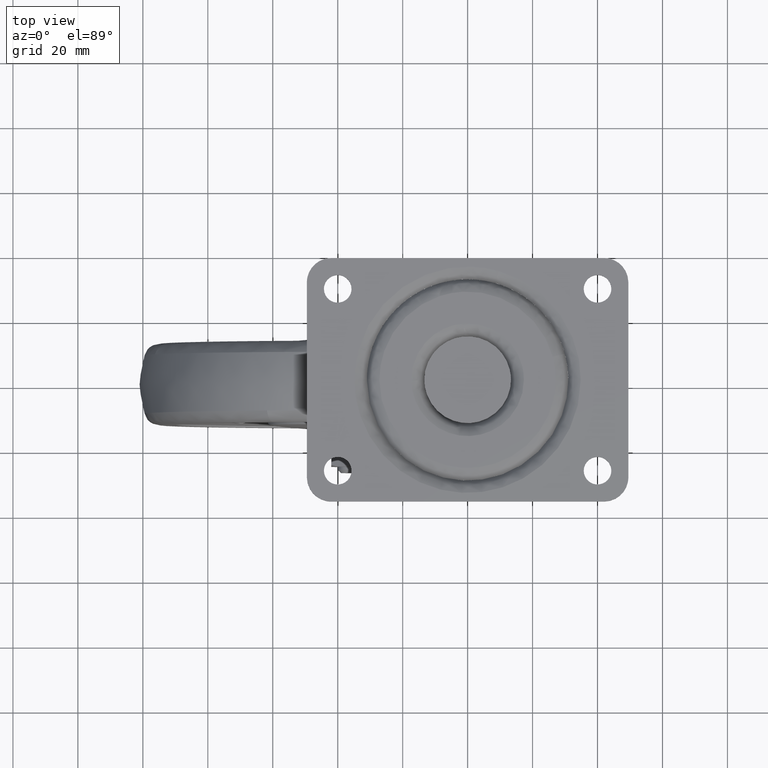
[diagram: clean part render]
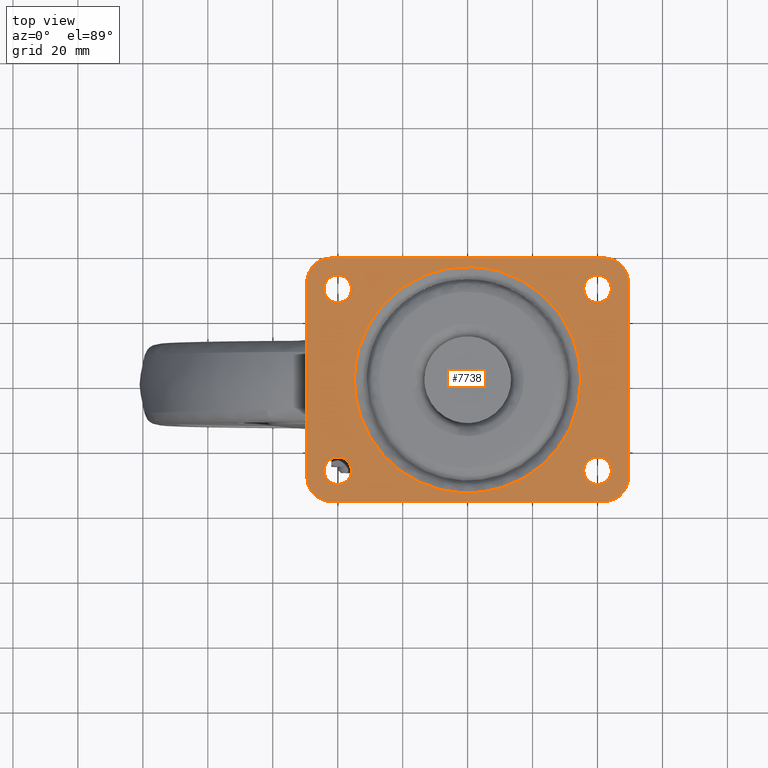
[diagram: same view with one face highlighted and labeled with its STEP entity id]
A machine part, top view. The second image highlights one B-rep face of the part: STEP entity #7738.
In plain terms, the highlighted face is a freeform B-spline surface patch.
Its self-contained STEP definition (entity closure, byte-faithful):
#5829=CARTESIAN_POINT('',(-40.501645497471713,23.779709512975870,1.490700E-016));
#5830=VERTEX_POINT('',#5829);
#5831=CARTESIAN_POINT('',(-35.750000000000007,28.0,0.0));
#5832=VERTEX_POINT('',#5831);
#5833=CARTESIAN_POINT('',(-40.501645497471706,23.779709512975874,1.490700E-016));
#5834=CARTESIAN_POINT('',(-40.251702508703026,23.749999999999996,0.0));
#5835=CARTESIAN_POINT('',(-40.0,23.750000000000000,0.0));
#5836=CARTESIAN_POINT('',(-35.750000000000007,23.750000000000011,0.0));
#5837=CARTESIAN_POINT('',(-35.750000000000007,28.0,0.0));
#5845=(BOUNDED_CURVE()B_SPLINE_CURVE(2,(#5833,#5834,#5835,#5836,#5837),.UNSPECIFIED.,.F.,.U.)B_SPLINE_CURVE_WITH_KNOTS((3,2,3),(0.229562473501188,0.250000000000000,0.500000000000000),.UNSPECIFIED.)CURVE()GEOMETRIC_REPRESENTATION_ITEM()RATIONAL_B_SPLINE_CURVE((0.956026754159552,0.976055948316711,1.0,0.707106781186548,1.0))REPRESENTATION_ITEM(''));
#5846=EDGE_CURVE('',#5830,#5832,#5845,.T.);
#5848=CARTESIAN_POINT('',(-39.740543706434572,32.242072893259767,1.457168E-016));
#5849=VERTEX_POINT('',#5848);
#5850=CARTESIAN_POINT('',(-35.750000000000007,28.0,0.0));
#5851=CARTESIAN_POINT('',(-35.750000000000000,31.998000783325136,0.0));
#5852=CARTESIAN_POINT('',(-39.740543706434572,32.242072893259767,1.457168E-016));
#5860=(BOUNDED_CURVE()B_SPLINE_CURVE(2,(#5850,#5851,#5852),.UNSPECIFIED.,.F.,.U.)B_SPLINE_CURVE_WITH_KNOTS((3,3),(0.500000000000000,0.739332962197853),.UNSPECIFIED.)CURVE()GEOMETRIC_REPRESENTATION_ITEM()RATIONAL_B_SPLINE_CURVE((1.0,0.719603993334849,0.976072041578655))REPRESENTATION_ITEM(''));
#5861=EDGE_CURVE('',#5832,#5849,#5860,.T.);
#5928=CARTESIAN_POINT('',(-44.250000000000000,28.0,0.0));
#5929=VERTEX_POINT('',#5928);
#5930=CARTESIAN_POINT('',(-44.250000000000000,28.0,0.0));
#5931=CARTESIAN_POINT('',(-44.250000000000007,24.225258265031830,0.0));
#5932=CARTESIAN_POINT('',(-40.501645497471706,23.779709512975867,1.490700E-016));
#5940=(BOUNDED_CURVE()B_SPLINE_CURVE(2,(#5930,#5931,#5932),.UNSPECIFIED.,.F.,.U.)B_SPLINE_CURVE_WITH_KNOTS((3,3),(0.0,0.229562473501189),.UNSPECIFIED.)CURVE()GEOMETRIC_REPRESENTATION_ITEM()RATIONAL_B_SPLINE_CURVE((1.0,0.731050832869836,0.956026754159552))REPRESENTATION_ITEM(''));
#5941=EDGE_CURVE('',#5929,#5830,#5940,.T.);
#5975=CARTESIAN_POINT('',(-39.740543706434579,32.242072893259767,1.457168E-016));
#5976=CARTESIAN_POINT('',(-39.870150755437180,32.250000000000000,0.0));
#5977=CARTESIAN_POINT('',(-40.0,32.250000000000000,0.0));
#5978=CARTESIAN_POINT('',(-44.250000000000000,32.250000000000000,0.0));
#5979=CARTESIAN_POINT('',(-44.250000000000000,28.0,0.0));
#5987=(BOUNDED_CURVE()B_SPLINE_CURVE(2,(#5975,#5976,#5977,#5978,#5979),.UNSPECIFIED.,.F.,.U.)B_SPLINE_CURVE_WITH_KNOTS((3,2,3),(0.739332962197853,0.750000000000000,1.0),.UNSPECIFIED.)CURVE()GEOMETRIC_REPRESENTATION_ITEM()RATIONAL_B_SPLINE_CURVE((0.976072041578654,0.987502787851698,1.0,0.707106781186548,1.0))REPRESENTATION_ITEM(''));
#5988=EDGE_CURVE('',#5849,#5929,#5987,.T.);
#6231=CARTESIAN_POINT('',(39.498354502528287,23.779709512975870,1.490700E-016));
#6232=VERTEX_POINT('',#6231);
#6233=CARTESIAN_POINT('',(44.250000000000000,28.0,0.0));
#6234=VERTEX_POINT('',#6233);
#6235=CARTESIAN_POINT('',(39.498354502528287,23.779709512975877,1.490700E-016));
#6236=CARTESIAN_POINT('',(39.748297491296981,23.749999999999996,0.0));
#6237=CARTESIAN_POINT('',(40.0,23.750000000000000,0.0));
#6238=CARTESIAN_POINT('',(44.250000000000000,23.750000000000011,0.0));
#6239=CARTESIAN_POINT('',(44.250000000000000,28.0,0.0));
#6247=(BOUNDED_CURVE()B_SPLINE_CURVE(2,(#6235,#6236,#6237,#6238,#6239),.UNSPECIFIED.,.F.,.U.)B_SPLINE_CURVE_WITH_KNOTS((3,2,3),(0.229562473501188,0.250000000000000,0.500000000000000),.UNSPECIFIED.)CURVE()GEOMETRIC_REPRESENTATION_ITEM()RATIONAL_B_SPLINE_CURVE((0.956026754159552,0.976055948316711,1.0,0.707106781186548,1.0))REPRESENTATION_ITEM(''));
#6248=EDGE_CURVE('',#6232,#6234,#6247,.T.);
#6250=CARTESIAN_POINT('',(40.259456293565442,32.242072893259767,1.457168E-016));
#6251=VERTEX_POINT('',#6250);
#6252=CARTESIAN_POINT('',(44.250000000000000,28.0,0.0));
#6253=CARTESIAN_POINT('',(44.250000000000000,31.998000783325136,0.0));
#6254=CARTESIAN_POINT('',(40.259456293565435,32.242072893259767,1.457168E-016));
#6262=(BOUNDED_CURVE()B_SPLINE_CURVE(2,(#6252,#6253,#6254),.UNSPECIFIED.,.F.,.U.)B_SPLINE_CURVE_WITH_KNOTS((3,3),(0.500000000000000,0.739332962197853),.UNSPECIFIED.)CURVE()GEOMETRIC_REPRESENTATION_ITEM()RATIONAL_B_SPLINE_CURVE((1.0,0.719603993334849,0.976072041578655))REPRESENTATION_ITEM(''));
#6263=EDGE_CURVE('',#6234,#6251,#6262,.T.);
#6330=CARTESIAN_POINT('',(35.750000000000007,28.0,0.0));
#6331=VERTEX_POINT('',#6330);
#6332=CARTESIAN_POINT('',(35.750000000000007,28.0,0.0));
#6333=CARTESIAN_POINT('',(35.750000000000014,24.225258265031851,0.0));
#6334=CARTESIAN_POINT('',(39.498354502528287,23.779709512975874,1.490700E-016));
#6342=(BOUNDED_CURVE()B_SPLINE_CURVE(2,(#6332,#6333,#6334),.UNSPECIFIED.,.F.,.U.)B_SPLINE_CURVE_WITH_KNOTS((3,3),(0.0,0.229562473501188),.UNSPECIFIED.)CURVE()GEOMETRIC_REPRESENTATION_ITEM()RATIONAL_B_SPLINE_CURVE((1.0,0.731050832869836,0.956026754159551))REPRESENTATION_ITEM(''));
#6343=EDGE_CURVE('',#6331,#6232,#6342,.T.);
#6377=CARTESIAN_POINT('',(40.259456293565435,32.242072893259767,1.457168E-016));
#6378=CARTESIAN_POINT('',(40.129849244562820,32.250000000000000,0.0));
#6379=CARTESIAN_POINT('',(40.0,32.250000000000000,0.0));
#6380=CARTESIAN_POINT('',(35.750000000000007,32.250000000000000,0.0));
#6381=CARTESIAN_POINT('',(35.750000000000007,28.0,0.0));
#6389=(BOUNDED_CURVE()B_SPLINE_CURVE(2,(#6377,#6378,#6379,#6380,#6381),.UNSPECIFIED.,.F.,.U.)B_SPLINE_CURVE_WITH_KNOTS((3,2,3),(0.739332962197853,0.750000000000000,1.0),.UNSPECIFIED.)CURVE()GEOMETRIC_REPRESENTATION_ITEM()RATIONAL_B_SPLINE_CURVE((0.976072041578654,0.987502787851697,1.0,0.707106781186548,1.0))REPRESENTATION_ITEM(''));
#6390=EDGE_CURVE('',#6251,#6331,#6389,.T.);
#6417=CARTESIAN_POINT('',(39.498354502528287,-32.220290487024130,1.490700E-016));
#6418=VERTEX_POINT('',#6417);
#6419=CARTESIAN_POINT('',(44.250000000000000,-28.0,0.0));
#6420=VERTEX_POINT('',#6419);
#6421=CARTESIAN_POINT('',(39.498354502528287,-32.220290487024137,1.490700E-016));
#6422=CARTESIAN_POINT('',(39.748297491296981,-32.250000000000000,0.0));
#6423=CARTESIAN_POINT('',(40.0,-32.250000000000000,0.0));
#6424=CARTESIAN_POINT('',(44.250000000000000,-32.250000000000000,0.0));
#6425=CARTESIAN_POINT('',(44.250000000000000,-28.0,0.0));
#6433=(BOUNDED_CURVE()B_SPLINE_CURVE(2,(#6421,#6422,#6423,#6424,#6425),.UNSPECIFIED.,.F.,.U.)B_SPLINE_CURVE_WITH_KNOTS((3,2,3),(0.229562473501188,0.250000000000000,0.500000000000000),.UNSPECIFIED.)CURVE()GEOMETRIC_REPRESENTATION_ITEM()RATIONAL_B_SPLINE_CURVE((0.956026754159552,0.976055948316711,1.0,0.707106781186548,1.0))REPRESENTATION_ITEM(''));
#6434=EDGE_CURVE('',#6418,#6420,#6433,.T.);
#6436=CARTESIAN_POINT('',(40.259456293565442,-23.757927106740230,1.457168E-016));
#6437=VERTEX_POINT('',#6436);
#6438=CARTESIAN_POINT('',(44.250000000000000,-28.0,0.0));
#6439=CARTESIAN_POINT('',(44.250000000000000,-24.001999216674875,0.0));
#6440=CARTESIAN_POINT('',(40.259456293565435,-23.757927106740230,1.457168E-016));
#6448=(BOUNDED_CURVE()B_SPLINE_CURVE(2,(#6438,#6439,#6440),.UNSPECIFIED.,.F.,.U.)B_SPLINE_CURVE_WITH_KNOTS((3,3),(0.500000000000000,0.739332962197853),.UNSPECIFIED.)CURVE()GEOMETRIC_REPRESENTATION_ITEM()RATIONAL_B_SPLINE_CURVE((1.0,0.719603993334849,0.976072041578655))REPRESENTATION_ITEM(''));
#6449=EDGE_CURVE('',#6420,#6437,#6448,.T.);
#6516=CARTESIAN_POINT('',(35.750000000000007,-28.0,0.0));
#6517=VERTEX_POINT('',#6516);
#6518=CARTESIAN_POINT('',(35.750000000000007,-28.0,0.0));
#6519=CARTESIAN_POINT('',(35.750000000000014,-31.774741734968170,0.0));
#6520=CARTESIAN_POINT('',(39.498354502528279,-32.220290487024137,1.490700E-016));
#6528=(BOUNDED_CURVE()B_SPLINE_CURVE(2,(#6518,#6519,#6520),.UNSPECIFIED.,.F.,.U.)B_SPLINE_CURVE_WITH_KNOTS((3,3),(0.0,0.229562473501188),.UNSPECIFIED.)CURVE()GEOMETRIC_REPRESENTATION_ITEM()RATIONAL_B_SPLINE_CURVE((1.0,0.731050832869836,0.956026754159551))REPRESENTATION_ITEM(''));
#6529=EDGE_CURVE('',#6517,#6418,#6528,.T.);
#6563=CARTESIAN_POINT('',(40.259456293565442,-23.757927106740230,1.457168E-016));
#6564=CARTESIAN_POINT('',(40.129849244562813,-23.750000000000000,0.0));
#6565=CARTESIAN_POINT('',(40.0,-23.750000000000000,0.0));
#6566=CARTESIAN_POINT('',(35.750000000000007,-23.750000000000011,0.0));
#6567=CARTESIAN_POINT('',(35.750000000000007,-28.0,0.0));
#6575=(BOUNDED_CURVE()B_SPLINE_CURVE(2,(#6563,#6564,#6565,#6566,#6567),.UNSPECIFIED.,.F.,.U.)B_SPLINE_CURVE_WITH_KNOTS((3,2,3),(0.739332962197853,0.750000000000000,1.0),.UNSPECIFIED.)CURVE()GEOMETRIC_REPRESENTATION_ITEM()RATIONAL_B_SPLINE_CURVE((0.976072041578654,0.987502787851698,1.0,0.707106781186548,1.0))REPRESENTATION_ITEM(''));
#6576=EDGE_CURVE('',#6437,#6517,#6575,.T.);
#6603=CARTESIAN_POINT('',(-40.501645497471713,-32.220290487024130,1.490700E-016));
#6604=VERTEX_POINT('',#6603);
#6605=CARTESIAN_POINT('',(-35.750000000000007,-28.0,0.0));
#6606=VERTEX_POINT('',#6605);
#6607=CARTESIAN_POINT('',(-40.501645497471706,-32.220290487024130,1.490700E-016));
#6608=CARTESIAN_POINT('',(-40.251702508703019,-32.250000000000014,0.0));
#6609=CARTESIAN_POINT('',(-40.0,-32.250000000000000,0.0));
#6610=CARTESIAN_POINT('',(-35.750000000000007,-32.250000000000000,0.0));
#6611=CARTESIAN_POINT('',(-35.750000000000007,-28.0,0.0));
#6619=(BOUNDED_CURVE()B_SPLINE_CURVE(2,(#6607,#6608,#6609,#6610,#6611),.UNSPECIFIED.,.F.,.U.)B_SPLINE_CURVE_WITH_KNOTS((3,2,3),(0.229562473501188,0.250000000000000,0.500000000000000),.UNSPECIFIED.)CURVE()GEOMETRIC_REPRESENTATION_ITEM()RATIONAL_B_SPLINE_CURVE((0.956026754159552,0.976055948316711,1.0,0.707106781186548,1.0))REPRESENTATION_ITEM(''));
#6620=EDGE_CURVE('',#6604,#6606,#6619,.T.);
#6622=CARTESIAN_POINT('',(-39.740543706434572,-23.757927106740230,1.457168E-016));
#6623=VERTEX_POINT('',#6622);
#6624=CARTESIAN_POINT('',(-35.750000000000007,-28.0,0.0));
#6625=CARTESIAN_POINT('',(-35.750000000000000,-24.001999216674875,0.0));
#6626=CARTESIAN_POINT('',(-39.740543706434572,-23.757927106740230,1.457168E-016));
#6634=(BOUNDED_CURVE()B_SPLINE_CURVE(2,(#6624,#6625,#6626),.UNSPECIFIED.,.F.,.U.)B_SPLINE_CURVE_WITH_KNOTS((3,3),(0.500000000000000,0.739332962197853),.UNSPECIFIED.)CURVE()GEOMETRIC_REPRESENTATION_ITEM()RATIONAL_B_SPLINE_CURVE((1.0,0.719603993334849,0.976072041578655))REPRESENTATION_ITEM(''));
#6635=EDGE_CURVE('',#6606,#6623,#6634,.T.);
#6702=CARTESIAN_POINT('',(-44.250000000000000,-28.0,0.0));
#6703=VERTEX_POINT('',#6702);
#6704=CARTESIAN_POINT('',(-44.250000000000000,-28.0,0.0));
#6705=CARTESIAN_POINT('',(-44.250000000000000,-31.774741734968156,0.0));
#6706=CARTESIAN_POINT('',(-40.501645497471713,-32.220290487024130,1.490700E-016));
#6714=(BOUNDED_CURVE()B_SPLINE_CURVE(2,(#6704,#6705,#6706),.UNSPECIFIED.,.F.,.U.)B_SPLINE_CURVE_WITH_KNOTS((3,3),(0.0,0.229562473501188),.UNSPECIFIED.)CURVE()GEOMETRIC_REPRESENTATION_ITEM()RATIONAL_B_SPLINE_CURVE((1.0,0.731050832869836,0.956026754159551))REPRESENTATION_ITEM(''));
#6715=EDGE_CURVE('',#6703,#6604,#6714,.T.);
#6749=CARTESIAN_POINT('',(-39.740543706434579,-23.757927106740230,1.457168E-016));
#6750=CARTESIAN_POINT('',(-39.870150755437180,-23.750000000000000,0.0));
#6751=CARTESIAN_POINT('',(-40.0,-23.750000000000000,0.0));
#6752=CARTESIAN_POINT('',(-44.250000000000000,-23.750000000000011,0.0));
#6753=CARTESIAN_POINT('',(-44.250000000000000,-28.0,0.0));
#6761=(BOUNDED_CURVE()B_SPLINE_CURVE(2,(#6749,#6750,#6751,#6752,#6753),.UNSPECIFIED.,.F.,.U.)B_SPLINE_CURVE_WITH_KNOTS((3,2,3),(0.739332962197853,0.750000000000000,1.0),.UNSPECIFIED.)CURVE()GEOMETRIC_REPRESENTATION_ITEM()RATIONAL_B_SPLINE_CURVE((0.976072041578654,0.987502787851698,1.0,0.707106781186548,1.0))REPRESENTATION_ITEM(''));
#6762=EDGE_CURVE('',#6623,#6703,#6761,.T.);
#6845=CARTESIAN_POINT('',(-33.523457682346091,9.511465138119721,-6.809997E-016));
#6846=VERTEX_POINT('',#6845);
#6860=CARTESIAN_POINT('',(-34.846666762965150,0.0,0.0));
#6861=VERTEX_POINT('',#6860);
#6862=CARTESIAN_POINT('',(-34.846666762965150,0.0,0.0));
#6863=CARTESIAN_POINT('',(-34.846666762965150,4.847773187992637,0.0));
#6864=CARTESIAN_POINT('',(-33.523457682346084,9.511465138119721,-6.809997E-016));
#6872=(BOUNDED_CURVE()B_SPLINE_CURVE(2,(#6862,#6863,#6864),.UNSPECIFIED.,.F.,.U.)B_SPLINE_CURVE_WITH_KNOTS((3,3),(0.0,0.046505535790315),.UNSPECIFIED.)CURVE()GEOMETRIC_REPRESENTATION_ITEM()RATIONAL_B_SPLINE_CURVE((1.0,0.945515375718921,0.911301444594047))REPRESENTATION_ITEM(''));
#6873=EDGE_CURVE('',#6861,#6846,#6872,.T.);
#6875=CARTESIAN_POINT('',(34.846666762965150,0.0,0.0));
#6876=VERTEX_POINT('',#6875);
#6877=CARTESIAN_POINT('',(34.846666762965150,0.0,0.0));
#6878=CARTESIAN_POINT('',(34.846666762965157,-34.846666762965157,0.0));
#6879=CARTESIAN_POINT('',(0.0,-34.846666762965150,0.0));
#6880=CARTESIAN_POINT('',(-34.846666762965157,-34.846666762965157,0.0));
#6881=CARTESIAN_POINT('',(-34.846666762965150,0.0,0.0));
#6889=(BOUNDED_CURVE()B_SPLINE_CURVE(2,(#6877,#6878,#6879,#6880,#6881),.UNSPECIFIED.,.F.,.U.)B_SPLINE_CURVE_WITH_KNOTS((3,2,3),(0.500000000000000,0.750000000000000,1.0),.UNSPECIFIED.)CURVE()GEOMETRIC_REPRESENTATION_ITEM()RATIONAL_B_SPLINE_CURVE((1.0,0.707106781186547,1.0,0.707106781186547,1.0))REPRESENTATION_ITEM(''));
#6890=EDGE_CURVE('',#6876,#6861,#6889,.T.);
#6892=CARTESIAN_POINT('',(9.511465138119721,33.523457682346077,-6.190906E-016));
#6893=VERTEX_POINT('',#6892);
#6894=CARTESIAN_POINT('',(9.511465138119721,33.523457682346084,-6.190906E-016));
#6895=CARTESIAN_POINT('',(34.846666762965150,26.335210899971401,0.0));
#6896=CARTESIAN_POINT('',(34.846666762965150,0.0,0.0));
#6904=(BOUNDED_CURVE()B_SPLINE_CURVE(2,(#6894,#6895,#6896),.UNSPECIFIED.,.F.,.U.)B_SPLINE_CURVE_WITH_KNOTS((3,3),(0.296505535790315,0.500000000000000),.UNSPECIFIED.)CURVE()GEOMETRIC_REPRESENTATION_ITEM()RATIONAL_B_SPLINE_CURVE((0.911301444594047,0.761591405467626,1.0))REPRESENTATION_ITEM(''));
#6905=EDGE_CURVE('',#6893,#6876,#6904,.T.);
#6956=CARTESIAN_POINT('',(-33.523457682346084,9.511465138119721,-6.809997E-016));
#6957=CARTESIAN_POINT('',(-26.335210899971401,34.846666762965150,0.0));
#6958=CARTESIAN_POINT('',(0.0,34.846666762965150,0.0));
#6959=CARTESIAN_POINT('',(4.847773187992647,34.846666762965150,0.0));
#6960=CARTESIAN_POINT('',(9.511465138119721,33.523457682346084,-6.190906E-016));
#6968=(BOUNDED_CURVE()B_SPLINE_CURVE(2,(#6956,#6957,#6958,#6959,#6960),.UNSPECIFIED.,.F.,.U.)B_SPLINE_CURVE_WITH_KNOTS((3,2,3),(0.046505535790315,0.250000000000000,0.296505535790316),.UNSPECIFIED.)CURVE()GEOMETRIC_REPRESENTATION_ITEM()RATIONAL_B_SPLINE_CURVE((0.911301444594047,0.761591405467626,1.0,0.945515375718921,0.911301444594047))REPRESENTATION_ITEM(''));
#6969=EDGE_CURVE('',#6846,#6893,#6968,.T.);
#7613=CARTESIAN_POINT('',(-54.445049808118803,41.246249854635437,0.0));
#7614=CARTESIAN_POINT('',(54.445052463505732,41.246249854635437,0.0));
#7615=CARTESIAN_POINT('',(-54.445049808118803,-41.246251866292198,0.0));
#7616=CARTESIAN_POINT('',(54.445052463505732,-41.246251866292198,0.0));
#7617=B_SPLINE_SURFACE_WITH_KNOTS('',1,1,((#7613,#7615),(#7614,#7616)),.UNSPECIFIED.,.F.,.F.,.U.,(2,2),(2,2),(0.0,108.890102271624500),(0.0,82.492501720927635),.UNSPECIFIED.);
#7618=CARTESIAN_POINT('',(42.0,37.500000000000000,0.0));
#7619=VERTEX_POINT('',#7618);
#7620=CARTESIAN_POINT('',(-42.0,37.500000000000000,0.0));
#7621=VERTEX_POINT('',#7620);
#7622=CARTESIAN_POINT('',(42.0,37.500000000000000,0.0));
#7623=CARTESIAN_POINT('',(-42.0,37.500000000000000,0.0));
#7624=QUASI_UNIFORM_CURVE('',1,(#7622,#7623),.UNSPECIFIED.,.F.,.U.);
#7625=EDGE_CURVE('',#7619,#7621,#7624,.T.);
#7626=ORIENTED_EDGE('',*,*,#7625,.T.);
#7627=CARTESIAN_POINT('',(-49.500000000000000,30.0,0.0));
#7628=VERTEX_POINT('',#7627);
#7629=CARTESIAN_POINT('',(-42.0,37.500000000000000,0.0));
#7630=CARTESIAN_POINT('',(-49.500000000000000,37.500000000000000,0.0));
#7631=CARTESIAN_POINT('',(-49.500000000000000,30.0,0.0));
#7639=(BOUNDED_CURVE()B_SPLINE_CURVE(2,(#7629,#7630,#7631),.UNSPECIFIED.,.F.,.U.)CURVE()GEOMETRIC_REPRESENTATION_ITEM()QUASI_UNIFORM_CURVE()RATIONAL_B_SPLINE_CURVE((1.0,0.707106781186547,1.0))REPRESENTATION_ITEM(''));
#7640=EDGE_CURVE('',#7621,#7628,#7639,.T.);
#7641=ORIENTED_EDGE('',*,*,#7640,.T.);
#7642=CARTESIAN_POINT('',(-49.500000000000000,-30.0,0.0));
#7643=VERTEX_POINT('',#7642);
#7644=CARTESIAN_POINT('',(-49.500000000000000,30.0,0.0));
#7645=CARTESIAN_POINT('',(-49.500000000000000,-30.0,0.0));
#7646=QUASI_UNIFORM_CURVE('',1,(#7644,#7645),.UNSPECIFIED.,.F.,.U.);
#7647=EDGE_CURVE('',#7628,#7643,#7646,.T.);
#7648=ORIENTED_EDGE('',*,*,#7647,.T.);
#7649=CARTESIAN_POINT('',(-42.0,-37.500000000000000,0.0));
#7650=VERTEX_POINT('',#7649);
#7651=CARTESIAN_POINT('',(-49.500000000000000,-30.0,0.0));
#7652=CARTESIAN_POINT('',(-49.500000000000000,-37.500000000000000,0.0));
#7653=CARTESIAN_POINT('',(-42.0,-37.500000000000000,0.0));
#7661=(BOUNDED_CURVE()B_SPLINE_CURVE(2,(#7651,#7652,#7653),.UNSPECIFIED.,.F.,.U.)CURVE()GEOMETRIC_REPRESENTATION_ITEM()QUASI_UNIFORM_CURVE()RATIONAL_B_SPLINE_CURVE((1.0,0.707106781186547,1.0))REPRESENTATION_ITEM(''));
#7662=EDGE_CURVE('',#7643,#7650,#7661,.T.);
#7663=ORIENTED_EDGE('',*,*,#7662,.T.);
#7664=CARTESIAN_POINT('',(42.0,-37.500000000000000,0.0));
#7665=VERTEX_POINT('',#7664);
#7666=CARTESIAN_POINT('',(-42.0,-37.500000000000000,0.0));
#7667=CARTESIAN_POINT('',(42.0,-37.500000000000000,0.0));
#7668=QUASI_UNIFORM_CURVE('',1,(#7666,#7667),.UNSPECIFIED.,.F.,.U.);
#7669=EDGE_CURVE('',#7650,#7665,#7668,.T.);
#7670=ORIENTED_EDGE('',*,*,#7669,.T.);
#7671=CARTESIAN_POINT('',(49.500000000000000,-30.0,0.0));
#7672=VERTEX_POINT('',#7671);
#7673=CARTESIAN_POINT('',(42.0,-37.500000000000000,0.0));
#7674=CARTESIAN_POINT('',(49.500000000000000,-37.500000000000000,0.0));
#7675=CARTESIAN_POINT('',(49.500000000000000,-30.0,0.0));
#7683=(BOUNDED_CURVE()B_SPLINE_CURVE(2,(#7673,#7674,#7675),.UNSPECIFIED.,.F.,.U.)CURVE()GEOMETRIC_REPRESENTATION_ITEM()QUASI_UNIFORM_CURVE()RATIONAL_B_SPLINE_CURVE((1.0,0.707106781186547,1.0))REPRESENTATION_ITEM(''));
#7684=EDGE_CURVE('',#7665,#7672,#7683,.T.);
#7685=ORIENTED_EDGE('',*,*,#7684,.T.);
#7686=CARTESIAN_POINT('',(49.500000000000000,30.0,0.0));
#7687=VERTEX_POINT('',#7686);
#7688=CARTESIAN_POINT('',(49.500000000000000,-30.0,0.0));
#7689=CARTESIAN_POINT('',(49.500000000000000,30.0,0.0));
#7690=QUASI_UNIFORM_CURVE('',1,(#7688,#7689),.UNSPECIFIED.,.F.,.U.);
#7691=EDGE_CURVE('',#7672,#7687,#7690,.T.);
#7692=ORIENTED_EDGE('',*,*,#7691,.T.);
#7693=CARTESIAN_POINT('',(49.500000000000000,30.0,0.0));
#7694=CARTESIAN_POINT('',(49.500000000000000,37.500000000000000,0.0));
#7695=CARTESIAN_POINT('',(42.0,37.500000000000000,0.0));
#7703=(BOUNDED_CURVE()B_SPLINE_CURVE(2,(#7693,#7694,#7695),.UNSPECIFIED.,.F.,.U.)CURVE()GEOMETRIC_REPRESENTATION_ITEM()QUASI_UNIFORM_CURVE()RATIONAL_B_SPLINE_CURVE((1.0,0.707106781186547,1.0))REPRESENTATION_ITEM(''));
#7704=EDGE_CURVE('',#7687,#7619,#7703,.T.);
#7705=ORIENTED_EDGE('',*,*,#7704,.T.);
#7706=EDGE_LOOP('',(#7626,#7641,#7648,#7663,#7670,#7685,#7692,#7705));
#7707=FACE_OUTER_BOUND('',#7706,.T.);
#7708=ORIENTED_EDGE('',*,*,#6890,.T.);
#7709=ORIENTED_EDGE('',*,*,#6873,.T.);
#7710=ORIENTED_EDGE('',*,*,#6969,.T.);
#7711=ORIENTED_EDGE('',*,*,#6905,.T.);
#7712=EDGE_LOOP('',(#7708,#7709,#7710,#7711));
#7713=FACE_BOUND('',#7712,.T.);
#7714=ORIENTED_EDGE('',*,*,#6635,.F.);
#7715=ORIENTED_EDGE('',*,*,#6620,.F.);
#7716=ORIENTED_EDGE('',*,*,#6715,.F.);
#7717=ORIENTED_EDGE('',*,*,#6762,.F.);
#7718=EDGE_LOOP('',(#7714,#7715,#7716,#7717));
#7719=FACE_BOUND('',#7718,.T.);
#7720=ORIENTED_EDGE('',*,*,#6449,.F.);
#7721=ORIENTED_EDGE('',*,*,#6434,.F.);
#7722=ORIENTED_EDGE('',*,*,#6529,.F.);
#7723=ORIENTED_EDGE('',*,*,#6576,.F.);
#7724=EDGE_LOOP('',(#7720,#7721,#7722,#7723));
#7725=FACE_BOUND('',#7724,.T.);
#7726=ORIENTED_EDGE('',*,*,#6263,.F.);
#7727=ORIENTED_EDGE('',*,*,#6248,.F.);
#7728=ORIENTED_EDGE('',*,*,#6343,.F.);
#7729=ORIENTED_EDGE('',*,*,#6390,.F.);
#7730=EDGE_LOOP('',(#7726,#7727,#7728,#7729));
#7731=FACE_BOUND('',#7730,.T.);
#7732=ORIENTED_EDGE('',*,*,#5861,.F.);
#7733=ORIENTED_EDGE('',*,*,#5846,.F.);
#7734=ORIENTED_EDGE('',*,*,#5941,.F.);
#7735=ORIENTED_EDGE('',*,*,#5988,.F.);
#7736=EDGE_LOOP('',(#7732,#7733,#7734,#7735));
#7737=FACE_BOUND('',#7736,.T.);
#7738=ADVANCED_FACE('',(#7707,#7713,#7719,#7725,#7731,#7737),#7617,.F.);